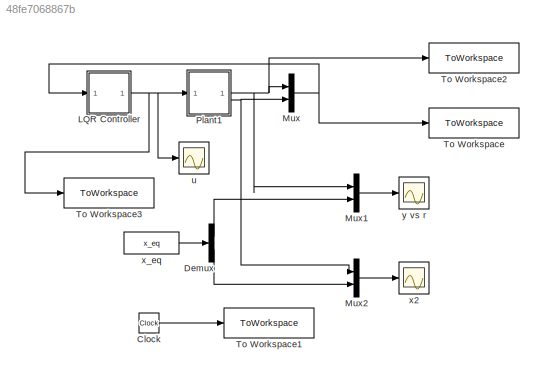
MODEL slx_48fe7068867b
KIND model
CONFIG AbsTol = auto
CONFIG EnableMultiTasking = off
CONFIG FixedStep = auto
CONFIG MaxStep = auto
CONFIG MinStep = auto
CONFIG RelTol = 1e-10
CONFIG SampleTimeConstraint = Unconstrained
CONFIG SolverName = VariableStepAuto
CONFIG StartTime = 0.0
CONFIG StopTime = 500
BLOCK [Clock] Clock
BLOCK [Demux] Demux
  Outputs = 2
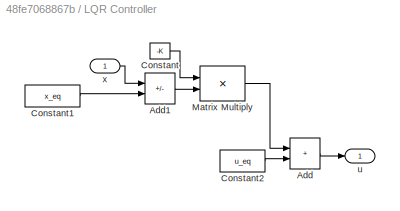
BLOCK [SubSystem] LQR Controller
BLOCK [Sum] LQR Controller/Add
  IconShape = rectangular
BLOCK [Sum] LQR Controller/Add1
  AccumDataTypeStr = Inherit: Same as first input
  IconShape = rectangular
  InputSameDT = on
  Inputs = +-
  LockScale = on
BLOCK [Constant] LQR Controller/Constant
  Value = -K
  VectorParams1D = off
BLOCK [Constant] LQR Controller/Constant1
  Value = x_eq
BLOCK [Constant] LQR Controller/Constant2
  Value = u_eq
BLOCK [Product] LQR Controller/Matrix Multiply
  Multiplication = Matrix(*)
BLOCK [Outport] LQR Controller/u
BLOCK [Inport] LQR Controller/x
BLOCK [Mux] Mux
  DisplayOption = bar
  Inputs = 2
BLOCK [Mux] Mux1
  DisplayOption = bar
  Inputs = 2
BLOCK [Mux] Mux2
  DisplayOption = bar
  Inputs = 2
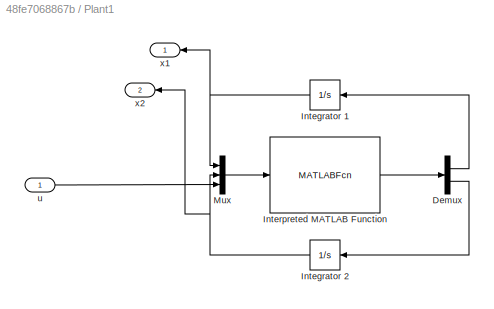
BLOCK [SubSystem] Plant1
BLOCK [Demux] Plant1/Demux
  Outputs = 2
BLOCK [Integrator] Plant1/Integrator 1
  InitialCondition = x1_0
  NameLocation = top
BLOCK [Integrator] Plant1/Integrator 2
  InitialCondition = x2_0
  NameLocation = top
BLOCK [MATLABFcn] Plant1/Interpreted MATLAB Function
  MATLABFcn = SYS
  OutputDimensions = 2
BLOCK [Mux] Plant1/Mux
  DisplayOption = bar
  Inputs = 3
BLOCK [Inport] Plant1/u
BLOCK [Outport] Plant1/x1
BLOCK [Outport] Plant1/x2
  Port = 2
BLOCK [ToWorkspace] To Workspace
  FixptAsFi = on
  MaxDataPoints = inf
  SampleTime = -1
  VariableName = x
BLOCK [ToWorkspace] To Workspace1
  FixptAsFi = on
  MaxDataPoints = inf
  SampleTime = -1
  SaveFormat = Timeseries
  VariableName = t
BLOCK [ToWorkspace] To Workspace2
  FixptAsFi = on
  MaxDataPoints = inf
  SampleTime = -1
  VariableName = y
BLOCK [ToWorkspace] To Workspace3
  FixptAsFi = on
  MaxDataPoints = inf
  SampleTime = -1
  VariableName = u
BLOCK [Scope] u
  Floating = off
  NumInputPorts = 1
  ScopeSpecificationString = Simulink.scopes.TimeScopeBlockCfg('CurrentConfiguration', extmgr.ConfigurationSet(extmgr.Configuration('Core','General UI',true),extmgr.Configuration('Core','Source UI',true),extmgr.Configuration('Sources','WiredSimulink',true,'DataLoggingVariableName','ScopeData1'),extmgr.Configuration('Visuals','Time Domain',true,'SerializedDisplays',{struct('MinYLimReal','-1.56555','MaxYLimReal','19.95293','YLa...<+1440ch>
BLOCK [Scope] x2
  Floating = off
  NumInputPorts = 1
  ScopeSpecificationString = Simulink.scopes.TimeScopeBlockCfg('CurrentConfiguration', extmgr.ConfigurationSet(extmgr.Configuration('Core','General UI',true),extmgr.Configuration('Core','Source UI',true),extmgr.Configuration('Sources','WiredSimulink',true,'DataLoggingVariableName','ScopeData1'),extmgr.Configuration('Visuals','Time Domain',true,'SerializedDisplays',{struct('MinYLimReal','-0.04223','MaxYLimReal','0.38008','YLab...<+1784ch>
BLOCK [Constant] x_eq
  Value = x_eq
BLOCK [Scope] y vs r
  Floating = off
  NumInputPorts = 1
  ScopeSpecificationString = Simulink.scopes.TimeScopeBlockCfg('CurrentConfiguration', extmgr.ConfigurationSet(extmgr.Configuration('Core','General UI',true),extmgr.Configuration('Core','Source UI',true),extmgr.Configuration('Sources','WiredSimulink',true),extmgr.Configuration('Visuals','Time Domain',true,'SerializedDisplays',{struct('MinYLimReal','0.04486','MaxYLimReal','0.04525','YLabelReal','','MinYLimMag','0.04486','MaxYL...<+1811ch>
LINE Clock:1 -> To Workspace1:1
LINE Demux:1 -> Mux1:2
LINE Demux:2 -> Mux2:2
LINE LQR Controller/Add1:1 -> LQR Controller/Matrix Multiply:2
LINE LQR Controller/Add:1 -> LQR Controller/u:1
LINE LQR Controller/Constant1:1 -> LQR Controller/Add1:2
LINE LQR Controller/Constant2:1 -> LQR Controller/Add:2
LINE LQR Controller/Constant:1 -> LQR Controller/Matrix Multiply:1
LINE LQR Controller/Matrix Multiply:1 -> LQR Controller/Add:1
LINE LQR Controller/x:1 -> LQR Controller/Add1:1
NET LQR Controller:1 -> Plant1:1, To Workspace3:1, u:1
LINE Mux1:1 -> y vs r:1
LINE Mux2:1 -> x2:1
NET Mux:1 -> LQR Controller:1, To Workspace:1
LINE Plant1/Demux:1 -> Plant1/Integrator 1:1
LINE Plant1/Demux:2 -> Plant1/Integrator 2:1
NET Plant1/Integrator 1:1 -> Plant1/Mux:1, Plant1/x1:1
NET Plant1/Integrator 2:1 -> Plant1/Mux:2, Plant1/x2:1
LINE Plant1/Interpreted MATLAB Function:1 -> Plant1/Demux:1
LINE Plant1/Mux:1 -> Plant1/Interpreted MATLAB Function:1
LINE Plant1/u:1 -> Plant1/Mux:3
NET Plant1:1 -> Mux1:1, Mux:1, To Workspace2:1
NET Plant1:2 -> Mux2:1, Mux:2
LINE x_eq:1 -> Demux:1
note: NET lines group one-source signal fan-out (src -> all destinations, sorted); 1:1 wires keep LINE
